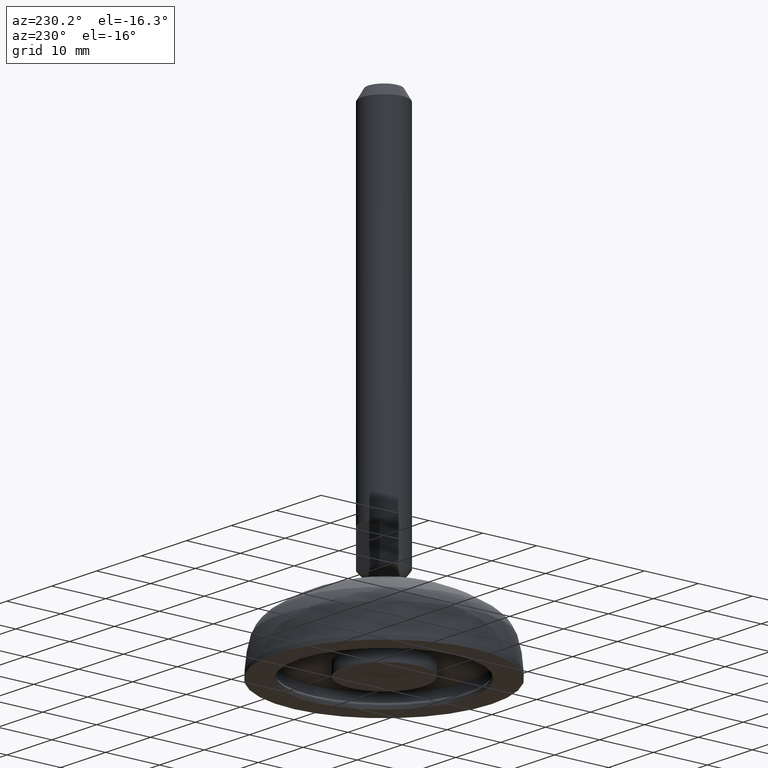
[diagram: clean part render]
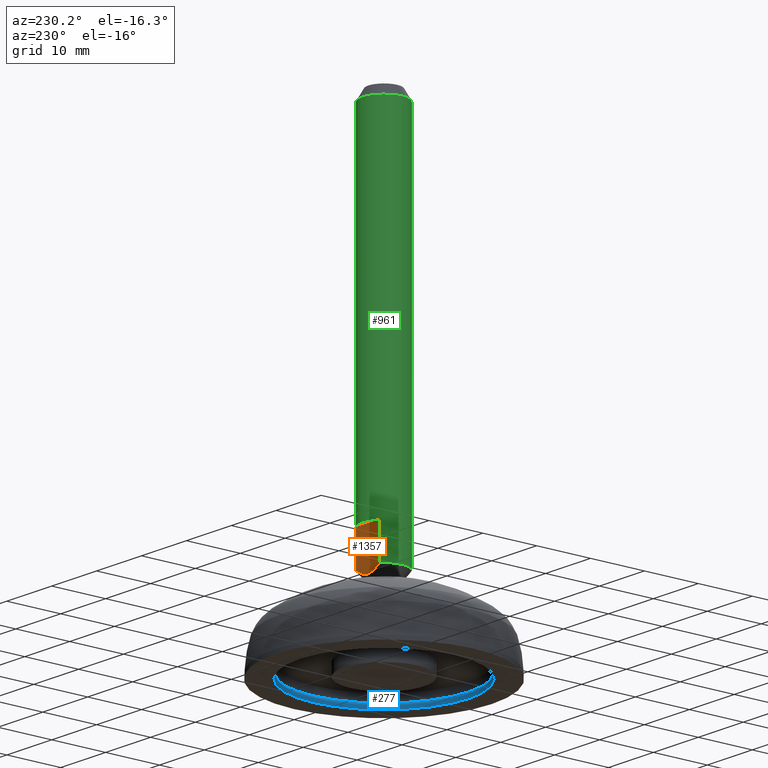
[diagram: same view with three faces highlighted in distinct colors, each labeled with its STEP entity id]
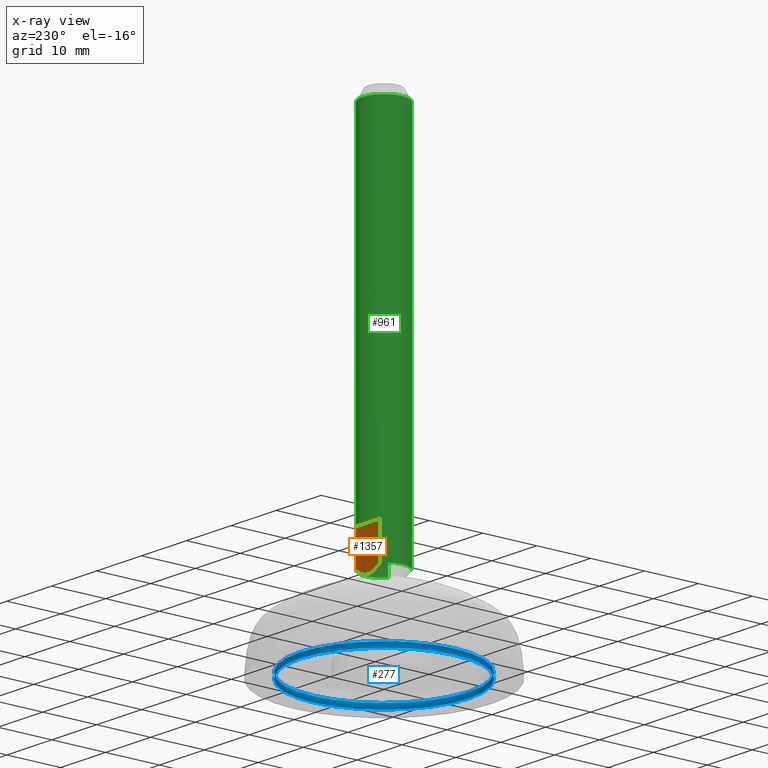
[diagram: x-ray of the same camera — body ghosted, the three highlighted faces saturated]
A machine part, auxiliary view with three faces highlighted in distinct colors.
The next image is the same camera in x-ray (body ghosted, the three faces saturated) — at least one of them is partly hidden behind the body in this view.
Their STEP definitions:

[orange] entity #1357 — the highlighted planar face has unit normal (0, 1, 0).
#893=CARTESIAN_POINT('',(2.645810161909338,2.999996833023360,16.102853341086671));
#894=VERTEX_POINT('',#893);
#902=CARTESIAN_POINT('',(2.645807595618447,2.999996833023360,22.602834181436315));
#903=VERTEX_POINT('',#902);
#904=CARTESIAN_POINT('',(2.645808570098528,2.999996833023360,22.602834181436545));
#905=CARTESIAN_POINT('',(2.645809034377124,2.999996833023360,20.707006293106208));
#906=CARTESIAN_POINT('',(2.645809498655344,2.999996833023360,18.811178404775880));
#907=CARTESIAN_POINT('',(2.645809962933240,2.999996833023360,16.915350516445535));
#908=CARTESIAN_POINT('',(2.645810029258613,2.999996833023360,16.644518124659250));
#909=CARTESIAN_POINT('',(2.645810095583978,2.999996833023360,16.373685732872964));
#910=CARTESIAN_POINT('',(2.645810161909338,2.999996833023360,16.102853341086671));
#911=B_SPLINE_CURVE_WITH_KNOTS('',3,(#904,#905,#906,#907,#908,#909,#910),.UNSPECIFIED.,.F.,.U.,(4,3,4),(0.007187546479511,0.012875030144503,0.013687527319862),.UNSPECIFIED.);
#912=EDGE_CURVE('',#903,#894,#911,.T.);
#914=CARTESIAN_POINT('',(-2.645758212562657,2.999996833023360,22.602834181436315));
#915=VERTEX_POINT('',#914);
#923=CARTESIAN_POINT('',(-2.645763705207422,2.999996833023360,16.102854928903412));
#924=VERTEX_POINT('',#923);
#925=CARTESIAN_POINT('',(-2.645763705205931,2.999996833023360,16.102854928903412));
#926=CARTESIAN_POINT('',(-2.645763476346413,2.999996833023360,16.373686720555785));
#927=CARTESIAN_POINT('',(-2.645763247486892,2.999996833023360,16.644518512208158));
#928=CARTESIAN_POINT('',(-2.645763018627362,2.999996833023360,16.915350303860535));
#929=CARTESIAN_POINT('',(-2.645761416606073,2.999996833023360,18.811178263052447));
#930=CARTESIAN_POINT('',(-2.645759814584460,2.999996833023360,20.707006222244381));
#931=CARTESIAN_POINT('',(-2.645758212562481,2.999996833023360,22.602834181436315));
#932=B_SPLINE_CURVE_WITH_KNOTS('',3,(#925,#926,#927,#928,#929,#930,#931),.UNSPECIFIED.,.F.,.U.,(4,3,4),(0.007187548279914,0.008000043654872,0.013687527532449),.UNSPECIFIED.);
#933=EDGE_CURVE('',#924,#915,#932,.T.);
#988=CARTESIAN_POINT('',(0.000022793426677,2.999996833023357,15.010998125120210));
#989=VERTEX_POINT('',#988);
#990=CARTESIAN_POINT('',(2.645810161909338,2.999996833023360,16.102853341086671));
#991=CARTESIAN_POINT('',(2.449052377870414,2.999996833023360,15.960758241064360));
#992=CARTESIAN_POINT('',(2.248140700327917,2.999996833023360,15.824416305889651));
#993=CARTESIAN_POINT('',(1.836331898045976,2.999996833023359,15.571400184448759));
#994=CARTESIAN_POINT('',(1.625177884263521,2.999996833023360,15.454401319863024));
#995=CARTESIAN_POINT('',(1.295793950921735,2.999996833023360,15.301822624191777));
#996=CARTESIAN_POINT('',(1.183864976390488,2.999996833023360,15.254829203914500));
#997=CARTESIAN_POINT('',(0.954527172513798,2.999996833023359,15.170768622262560));
#998=CARTESIAN_POINT('',(0.838098784630705,2.999996833023359,15.134124820766697));
#999=CARTESIAN_POINT('',(0.603332968674916,2.999996833023359,15.074251275510452));
#1000=CARTESIAN_POINT('',(0.484685164112518,2.999996833023360,15.050913370169180));
#1001=CARTESIAN_POINT('',(0.244506480525375,2.999996833023360,15.019278335142340));
#1002=CARTESIAN_POINT('',(0.122336153885125,2.999996833023361,15.010998083641898));
#1003=CARTESIAN_POINT('',(0.000022793426677,2.999996833023360,15.010998125120210));
#1004=B_SPLINE_CURVE_WITH_KNOTS('',3,(#990,#991,#992,#993,#994,#995,#996,#997,#998,#999,#1000,#1001,#1002,#1003),.UNSPECIFIED.,.F.,.U.,(4,2,2,2,2,2,4),(0.0,0.249999999999999,0.500000000000000,0.625000000000000,0.750000000000000,0.875000000000000,1.0),.UNSPECIFIED.);
#1005=EDGE_CURVE('',#894,#989,#1004,.T.);
#1063=CARTESIAN_POINT('',(0.000022793426677,2.999996833023360,15.010998125120210));
#1064=CARTESIAN_POINT('',(-0.244510717188066,2.999996833023360,15.010998208045232));
#1065=CARTESIAN_POINT('',(-0.483895231750382,2.999996833023360,15.043928746509447));
#1066=CARTESIAN_POINT('',(-0.836657815569132,2.999996833023360,15.133707006609530));
#1067=CARTESIAN_POINT('',(-0.953749623776380,2.999996833023360,15.170540902545810));
#1068=CARTESIAN_POINT('',(-1.182267379808181,2.999996833023360,15.254221689947581));
#1069=CARTESIAN_POINT('',(-1.293983340954007,2.999996833023360,15.301061079883130));
#1070=CARTESIAN_POINT('',(-1.623134358296861,2.999996833023360,15.453368196225787));
#1071=CARTESIAN_POINT('',(-1.834663489810545,2.999996833023360,15.570446091884481));
#1072=CARTESIAN_POINT('',(-2.247765562309429,2.999996833023360,15.824174272511641));
#1073=CARTESIAN_POINT('',(-2.449404107509873,2.999996833023360,15.961047212932900));
#1074=CARTESIAN_POINT('',(-2.645763705207080,2.999996833023360,16.102854928903813));
#1075=B_SPLINE_CURVE_WITH_KNOTS('',3,(#1063,#1064,#1065,#1066,#1067,#1068,#1069,#1070,#1071,#1072,#1073,#1074),.UNSPECIFIED.,.F.,.U.,(4,2,2,2,2,4),(0.0,0.250000000000000,0.375000000000000,0.500000000000000,0.750000000000000,1.0),.UNSPECIFIED.);
#1076=EDGE_CURVE('',#989,#924,#1075,.T.);
#1336=CARTESIAN_POINT('',(-2.645758212562657,2.999996833023360,22.602834181436315));
#1337=DIRECTION('',(1.0,0.0,0.0));
#1338=VECTOR('',#1337,5.291565808181103);
#1339=LINE('',#1336,#1338);
#1340=EDGE_CURVE('',#915,#903,#1339,.T.);
#1345=CARTESIAN_POINT('',(-2.910342398563261,2.999996833023360,14.631406322304393));
#1346=DIRECTION('',(0.0,1.0,0.0));
#1347=DIRECTION('',(0.0,0.0,1.0));
#1348=AXIS2_PLACEMENT_3D('',#1345,#1346,#1347);
#1349=PLANE('',#1348);
#1350=ORIENTED_EDGE('',*,*,#912,.T.);
#1351=ORIENTED_EDGE('',*,*,#1005,.T.);
#1352=ORIENTED_EDGE('',*,*,#1076,.T.);
#1353=ORIENTED_EDGE('',*,*,#933,.T.);
#1354=ORIENTED_EDGE('',*,*,#1340,.T.);
#1355=EDGE_LOOP('',(#1350,#1351,#1352,#1353,#1354));
#1356=FACE_OUTER_BOUND('',#1355,.T.);
#1357=ADVANCED_FACE('',(#1356),#1349,.T.);

[blue] entity #277 — the highlighted face is a freeform B-spline surface patch.
#164=CARTESIAN_POINT('',(-15.700001313207512,5.857621E-016,0.999988580769128));
#165=VERTEX_POINT('',#164);
#166=CARTESIAN_POINT('',(15.700001313207508,5.857621E-016,0.999988580769131));
#167=VERTEX_POINT('',#166);
#168=CARTESIAN_POINT('',(0.0,5.857621E-016,0.999988580769128));
#169=DIRECTION('',(0.0,0.0,1.0));
#170=DIRECTION('',(1.0,0.0,0.0));
#171=AXIS2_PLACEMENT_3D('',#168,#169,#170);
#172=CIRCLE('',#171,15.700001313207512);
#173=EDGE_CURVE('',#165,#167,#172,.T.);
#175=CARTESIAN_POINT('',(0.0,5.857621E-016,0.999988580769128));
#176=DIRECTION('',(0.0,0.0,1.0));
#177=DIRECTION('',(1.0,0.0,0.0));
#178=AXIS2_PLACEMENT_3D('',#175,#176,#177);
#179=CIRCLE('',#178,15.700001313207512);
#180=EDGE_CURVE('',#167,#165,#179,.T.);
#194=CARTESIAN_POINT('',(15.700001345624077,0.000000888126178,0.999988598058511));
#195=CARTESIAN_POINT('',(15.400030556338221,0.000000871157268,0.839999369264960));
#196=CARTESIAN_POINT('',(15.400030556338226,0.000000871157268,0.500030212201068));
#197=CARTESIAN_POINT('',(15.400030556338221,0.000000871157268,0.160000887957739));
#198=CARTESIAN_POINT('',(15.700079416881787,0.000000888130594,0.000030194917159));
#199=CARTESIAN_POINT('',(15.700002233750304,-15.700001345624102,0.999988598058511));
#200=CARTESIAN_POINT('',(15.400031427495540,-15.400030556338251,0.839999369264961));
#201=CARTESIAN_POINT('',(15.400031427495540,-15.400030556338248,0.500030212201068));
#202=CARTESIAN_POINT('',(15.400031427495540,-15.400030556338249,0.160000887957739));
#203=CARTESIAN_POINT('',(15.700080305012433,-15.700079416881813,0.000030194917159));
#204=CARTESIAN_POINT('',(0.0,-15.700001345624100,0.999988598058511));
#205=CARTESIAN_POINT('',(0.0,-15.400030556338248,0.839999369264960));
#206=CARTESIAN_POINT('',(0.0,-15.400030556338248,0.500030212201068));
#207=CARTESIAN_POINT('',(0.0,-15.400030556338251,0.160000887957739));
#208=CARTESIAN_POINT('',(0.0,-15.700079416881813,0.000030194917159));
#209=CARTESIAN_POINT('',(-15.700001345624104,-15.700001345624104,0.999988598058511));
#210=CARTESIAN_POINT('',(-15.400030556338249,-15.400030556338249,0.839999369264961));
#211=CARTESIAN_POINT('',(-15.400030556338248,-15.400030556338248,0.500030212201068));
#212=CARTESIAN_POINT('',(-15.400030556338249,-15.400030556338249,0.160000887957739));
#213=CARTESIAN_POINT('',(-15.700079416881815,-15.700079416881815,0.000030194917159));
#214=CARTESIAN_POINT('',(-15.700001345624100,5.857621E-016,0.999988598058511));
#215=CARTESIAN_POINT('',(-15.400030556338248,5.857621E-016,0.839999369264960));
#216=CARTESIAN_POINT('',(-15.400030556338248,5.857621E-016,0.500030212201068));
#217=CARTESIAN_POINT('',(-15.400030556338251,5.857621E-016,0.160000887957739));
#218=CARTESIAN_POINT('',(-15.700079416881813,5.857621E-016,0.000030194917159));
#219=CARTESIAN_POINT('',(-15.700001345624104,15.700001345624104,0.999988598058511));
#220=CARTESIAN_POINT('',(-15.400030556338249,15.400030556338249,0.839999369264961));
#221=CARTESIAN_POINT('',(-15.400030556338248,15.400030556338248,0.500030212201068));
#222=CARTESIAN_POINT('',(-15.400030556338249,15.400030556338249,0.160000887957739));
#223=CARTESIAN_POINT('',(-15.700079416881815,15.700079416881815,0.000030194917159));
#224=CARTESIAN_POINT('',(0.0,15.700001345624100,0.999988598058511));
#225=CARTESIAN_POINT('',(0.0,15.400030556338248,0.839999369264960));
#226=CARTESIAN_POINT('',(0.0,15.400030556338248,0.500030212201068));
#227=CARTESIAN_POINT('',(0.0,15.400030556338251,0.160000887957739));
#228=CARTESIAN_POINT('',(0.0,15.700079416881813,0.000030194917159));
#229=CARTESIAN_POINT('',(15.700002233750304,15.700001345624102,0.999988598058511));
#230=CARTESIAN_POINT('',(15.400031427495540,15.400030556338251,0.839999369264961));
#231=CARTESIAN_POINT('',(15.400031427495540,15.400030556338248,0.500030212201068));
#232=CARTESIAN_POINT('',(15.400031427495540,15.400030556338249,0.160000887957739));
#233=CARTESIAN_POINT('',(15.700080305012433,15.700079416881813,0.000030194917159));
#234=CARTESIAN_POINT('',(15.700001345624075,-0.000000888126177,0.999988598058511));
#235=CARTESIAN_POINT('',(15.400030556338224,-0.000000871157267,0.839999369264960));
#236=CARTESIAN_POINT('',(15.400030556338223,-0.000000871157267,0.500030212201068));
#237=CARTESIAN_POINT('',(15.400030556338223,-0.000000871157267,0.160000887957739));
#238=CARTESIAN_POINT('',(15.700079416881787,-0.000000888130593,0.000030194917159));
#246=(BOUNDED_SURFACE()B_SPLINE_SURFACE(2,2,((#194,#199,#204,#209,#214,#219,#224,#229,#234),(#195,#200,#205,#210,#215,#220,#225,#230,#235),(#196,#201,#206,#211,#216,#221,#226,#231,#236),(#197,#202,#207,#212,#217,#222,#227,#232,#237),(#198,#203,#208,#213,#218,#223,#228,#233,#238)),.UNSPECIFIED.,.F.,.T.,.U.)B_SPLINE_SURFACE_WITH_KNOTS((3,2,3),(3,2,2,2,3),(0.330096234762487,0.500000000000000,0.669927848245338),(-1.000000E-008,0.250000000000000,0.500000000000000,0.750000000000000,1.000000010000000),.UNSPECIFIED.)GEOMETRIC_REPRESENTATION_ITEM()RATIONAL_B_SPLINE_SURFACE(((0.872451801268990,0.616916560259058,0.872451780826172,0.616916570480466,0.872451780826172,0.616916570480466,0.872451780826172,0.616916560259058,0.872451801268990),(0.800945376011557,0.566353884083625,0.800945357244239,0.566353893467283,0.800945357244239,0.566353893467283,0.800945357244239,0.566353884083625,0.800945376011557),(1.000000023431458,0.707106769470819,1.0,0.707106781186548,1.0,0.707106781186548,1.0,0.707106769470819,1.000000023431458),(0.800917161012172,0.566333933067027,0.800917142245516,0.566333942450355,0.800917142245516,0.566333942450355,0.800917142245516,0.566333933067027,0.800917161012172),(0.872472078060343,0.616930898115150,0.872472057617050,0.616930908336796,0.872472057617050,0.616930908336796,0.872472057617050,0.616930898115150,0.872472078060343)))REPRESENTATION_ITEM('')SURFACE());
#247=CARTESIAN_POINT('',(15.700079384463271,5.857621E-016,0.000030212201068));
#248=VERTEX_POINT('',#247);
#249=CARTESIAN_POINT('',(15.966653831263219,5.857621E-016,0.500030212201068));
#250=DIRECTION('',(0.0,1.0,0.0));
#251=DIRECTION('',(1.0,0.0,0.0));
#252=AXIS2_PLACEMENT_3D('',#249,#250,#251);
#253=CIRCLE('',#252,0.566623274924971);
#254=EDGE_CURVE('',#248,#167,#253,.T.);
#255=ORIENTED_EDGE('',*,*,#254,.F.);
#256=CARTESIAN_POINT('',(-15.700079384463271,5.857621E-016,0.000030212201068));
#257=VERTEX_POINT('',#256);
#258=CARTESIAN_POINT('',(0.0,5.857621E-016,0.000030212201068));
#259=DIRECTION('',(0.0,0.0,1.0));
#260=DIRECTION('',(1.0,0.0,0.0));
#261=AXIS2_PLACEMENT_3D('',#258,#259,#260);
#262=CIRCLE('',#261,15.700079384463271);
#263=EDGE_CURVE('',#257,#248,#262,.T.);
#264=ORIENTED_EDGE('',*,*,#263,.F.);
#265=CARTESIAN_POINT('',(0.0,5.857621E-016,0.000030212201068));
#266=DIRECTION('',(0.0,0.0,1.0));
#267=DIRECTION('',(1.0,0.0,0.0));
#268=AXIS2_PLACEMENT_3D('',#265,#266,#267);
#269=CIRCLE('',#268,15.700079384463271);
#270=EDGE_CURVE('',#248,#257,#269,.T.);
#271=ORIENTED_EDGE('',*,*,#270,.F.);
#272=ORIENTED_EDGE('',*,*,#254,.T.);
#273=ORIENTED_EDGE('',*,*,#180,.T.);
#274=ORIENTED_EDGE('',*,*,#173,.T.);
#275=EDGE_LOOP('',(#255,#264,#271,#272,#273,#274));
#276=FACE_OUTER_BOUND('',#275,.T.);
#277=ADVANCED_FACE('',(#276),#246,.T.);

[green] entity #961 — the highlighted cylindrical surface (bore or boss wall) has radius 4 mm, axis along (-0, 0, -1).
#836=CARTESIAN_POINT('',(0.000044111296350,-0.000003166976640,85.697582221026266));
#837=DIRECTION('',(-0.000000300065037,0.0,-0.999999999999955));
#838=DIRECTION('',(-0.999999999999955,0.0,0.000000300065037));
#839=AXIS2_PLACEMENT_3D('',#836,#837,#838);
#840=CYLINDRICAL_SURFACE('',#839,3.999998476067683);
#841=CARTESIAN_POINT('',(-3.999991971773162,-0.000003166976640,16.102855335259523));
#842=VERTEX_POINT('',#841);
#843=CARTESIAN_POINT('',(-3.999954364771156,-0.000003166976640,85.697583411285962));
#844=VERTEX_POINT('',#843);
#845=CARTESIAN_POINT('',(-3.999975247715812,-0.000003166976640,16.102855335254489));
#846=DIRECTION('',(0.000000300065037,0.0,0.999999999999955));
#847=VECTOR('',#846,69.594728076034599);
#848=LINE('',#845,#847);
#849=EDGE_CURVE('',#842,#844,#848,.T.);
#850=ORIENTED_EDGE('',*,*,#849,.F.);
#851=CARTESIAN_POINT('',(-2.645763705205930,-3.000003166976640,16.102854928902978));
#852=VERTEX_POINT('',#851);
#853=CARTESIAN_POINT('',(0.000023228351704,-0.000003166976640,16.102854134994825));
#854=DIRECTION('',(-0.000000300065037,0.0,-0.999999999999955));
#855=DIRECTION('',(-0.999999999999955,0.0,0.000000300065037));
#856=AXIS2_PLACEMENT_3D('',#853,#854,#855);
#857=CIRCLE('',#856,4.000023562153722);
#858=EDGE_CURVE('',#852,#842,#857,.T.);
#859=ORIENTED_EDGE('',*,*,#858,.F.);
#860=CARTESIAN_POINT('',(-2.645758212562657,-3.000003166976640,22.602834181436315));
#861=VERTEX_POINT('',#860);
#862=CARTESIAN_POINT('',(-2.645763705205931,-3.000003166976640,16.102854928902978));
#863=CARTESIAN_POINT('',(-2.645763476346413,-3.000003166976640,16.373686720555501));
#864=CARTESIAN_POINT('',(-2.645763247486892,-3.000003166976640,16.644518512208009));
#865=CARTESIAN_POINT('',(-2.645763018627362,-3.000003166976640,16.915350303860535));
#866=CARTESIAN_POINT('',(-2.645761416606073,-3.000003166976640,18.811178263052447));
#867=CARTESIAN_POINT('',(-2.645759814584460,-3.000003166976640,20.707006222244381));
#868=CARTESIAN_POINT('',(-2.645758212562481,-3.000003166976640,22.602834181436315));
#869=B_SPLINE_CURVE_WITH_KNOTS('',3,(#862,#863,#864,#865,#866,#867,#868),.UNSPECIFIED.,.F.,.U.,(4,3,4),(0.007187548279914,0.008000043654872,0.013687527532449),.UNSPECIFIED.);
#870=EDGE_CURVE('',#852,#861,#869,.T.);
#871=ORIENTED_EDGE('',*,*,#870,.T.);
#872=CARTESIAN_POINT('',(2.645807595618447,-3.000003166976640,22.602834181436315));
#873=VERTEX_POINT('',#872);
#874=CARTESIAN_POINT('',(0.000025178768036,-0.000003166976624,22.602834181436300));
#875=DIRECTION('',(0.0,0.0,1.0));
#876=DIRECTION('',(0.0,-1.0,0.0));
#877=AXIS2_PLACEMENT_3D('',#874,#875,#876);
#878=CIRCLE('',#877,4.000021219173773);
#879=EDGE_CURVE('',#861,#873,#878,.T.);
#880=ORIENTED_EDGE('',*,*,#879,.T.);
#881=CARTESIAN_POINT('',(2.645810161909338,-3.000003166976640,16.102853341086671));
#882=VERTEX_POINT('',#881);
#883=CARTESIAN_POINT('',(2.645808570098528,-3.000003166976640,22.602834181436545));
#884=CARTESIAN_POINT('',(2.645809034377124,-3.000003166976640,20.707006293106225));
#885=CARTESIAN_POINT('',(2.645809498655344,-3.000003166976640,18.811178404775880));
#886=CARTESIAN_POINT('',(2.645809962933240,-3.000003166976640,16.915350516445550));
#887=CARTESIAN_POINT('',(2.645810029258613,-3.000003166976640,16.644518124659264));
#888=CARTESIAN_POINT('',(2.645810095583978,-3.000003166976640,16.373685732872964));
#889=CARTESIAN_POINT('',(2.645810161909338,-3.000003166976640,16.102853341086671));
#890=B_SPLINE_CURVE_WITH_KNOTS('',3,(#883,#884,#885,#886,#887,#888,#889),.UNSPECIFIED.,.F.,.U.,(4,3,4),(0.007187546479511,0.012875030144503,0.013687527319862),.UNSPECIFIED.);
#891=EDGE_CURVE('',#873,#882,#890,.T.);
#892=ORIENTED_EDGE('',*,*,#891,.T.);
#893=CARTESIAN_POINT('',(2.645810161909338,2.999996833023360,16.102853341086671));
#894=VERTEX_POINT('',#893);
#895=CARTESIAN_POINT('',(0.000023228351704,-0.000003166976640,16.102854134994825));
#896=DIRECTION('',(-0.000000300065037,0.0,-0.999999999999955));
#897=DIRECTION('',(-0.999999999999955,0.0,0.000000300065037));
#898=AXIS2_PLACEMENT_3D('',#895,#896,#897);
#899=CIRCLE('',#898,4.000023562153722);
#900=EDGE_CURVE('',#894,#882,#899,.T.);
#901=ORIENTED_EDGE('',*,*,#900,.F.);
#902=CARTESIAN_POINT('',(2.645807595618447,2.999996833023360,22.602834181436315));
#903=VERTEX_POINT('',#902);
#904=CARTESIAN_POINT('',(2.645808570098528,2.999996833023360,22.602834181436545));
#905=CARTESIAN_POINT('',(2.645809034377124,2.999996833023360,20.707006293106208));
#906=CARTESIAN_POINT('',(2.645809498655344,2.999996833023360,18.811178404775880));
#907=CARTESIAN_POINT('',(2.645809962933240,2.999996833023360,16.915350516445535));
#908=CARTESIAN_POINT('',(2.645810029258613,2.999996833023360,16.644518124659250));
#909=CARTESIAN_POINT('',(2.645810095583978,2.999996833023360,16.373685732872964));
#910=CARTESIAN_POINT('',(2.645810161909338,2.999996833023360,16.102853341086671));
#911=B_SPLINE_CURVE_WITH_KNOTS('',3,(#904,#905,#906,#907,#908,#909,#910),.UNSPECIFIED.,.F.,.U.,(4,3,4),(0.007187546479511,0.012875030144503,0.013687527319862),.UNSPECIFIED.);
#912=EDGE_CURVE('',#903,#894,#911,.T.);
#913=ORIENTED_EDGE('',*,*,#912,.F.);
#914=CARTESIAN_POINT('',(-2.645758212562657,2.999996833023360,22.602834181436315));
#915=VERTEX_POINT('',#914);
#916=CARTESIAN_POINT('',(0.000025178768036,-0.000003166976624,22.602834181436315));
#917=DIRECTION('',(0.0,0.0,-1.0));
#918=DIRECTION('',(0.0,1.0,0.0));
#919=AXIS2_PLACEMENT_3D('',#916,#917,#918);
#920=CIRCLE('',#919,4.000021219173773);
#921=EDGE_CURVE('',#915,#903,#920,.T.);
#922=ORIENTED_EDGE('',*,*,#921,.F.);
#923=CARTESIAN_POINT('',(-2.645763705207422,2.999996833023360,16.102854928903412));
#924=VERTEX_POINT('',#923);
#925=CARTESIAN_POINT('',(-2.645763705205931,2.999996833023360,16.102854928903412));
#926=CARTESIAN_POINT('',(-2.645763476346413,2.999996833023360,16.373686720555785));
#927=CARTESIAN_POINT('',(-2.645763247486892,2.999996833023360,16.644518512208158));
#928=CARTESIAN_POINT('',(-2.645763018627362,2.999996833023360,16.915350303860535));
#929=CARTESIAN_POINT('',(-2.645761416606073,2.999996833023360,18.811178263052447));
#930=CARTESIAN_POINT('',(-2.645759814584460,2.999996833023360,20.707006222244381));
#931=CARTESIAN_POINT('',(-2.645758212562481,2.999996833023360,22.602834181436315));
#932=B_SPLINE_CURVE_WITH_KNOTS('',3,(#925,#926,#927,#928,#929,#930,#931),.UNSPECIFIED.,.F.,.U.,(4,3,4),(0.007187548279914,0.008000043654872,0.013687527532449),.UNSPECIFIED.);
#933=EDGE_CURVE('',#924,#915,#932,.T.);
#934=ORIENTED_EDGE('',*,*,#933,.F.);
#935=CARTESIAN_POINT('',(0.000023228351704,-0.000003166976640,16.102854134994825));
#936=DIRECTION('',(-0.000000300065037,0.0,-0.999999999999955));
#937=DIRECTION('',(-0.999999999999955,0.0,0.000000300065037));
#938=AXIS2_PLACEMENT_3D('',#935,#936,#937);
#939=CIRCLE('',#938,4.000023562153722);
#940=EDGE_CURVE('',#842,#924,#939,.T.);
#941=ORIENTED_EDGE('',*,*,#940,.F.);
#942=ORIENTED_EDGE('',*,*,#849,.T.);
#943=CARTESIAN_POINT('',(4.000042587363851,-0.000003166976640,85.697581010766584));
#944=VERTEX_POINT('',#943);
#945=CARTESIAN_POINT('',(0.000044111296347,-0.000003166976640,85.697582211026287));
#946=DIRECTION('',(-0.000000300065037,0.0,-0.999999999999955));
#947=DIRECTION('',(-0.999999999999955,0.0,0.000000300065037));
#948=AXIS2_PLACEMENT_3D('',#945,#946,#947);
#949=CIRCLE('',#948,3.999998476067683);
#950=EDGE_CURVE('',#844,#944,#949,.T.);
#951=ORIENTED_EDGE('',*,*,#950,.T.);
#952=CARTESIAN_POINT('',(0.000044111296347,-0.000003166976640,85.697582211026287));
#953=DIRECTION('',(-0.000000300065037,0.0,-0.999999999999955));
#954=DIRECTION('',(-0.999999999999955,0.0,0.000000300065037));
#955=AXIS2_PLACEMENT_3D('',#952,#953,#954);
#956=CIRCLE('',#955,3.999998476067683);
#957=EDGE_CURVE('',#944,#844,#956,.T.);
#958=ORIENTED_EDGE('',*,*,#957,.T.);
#959=EDGE_LOOP('',(#850,#859,#871,#880,#892,#901,#913,#922,#934,#941,#942,#951,#958));
#960=FACE_OUTER_BOUND('',#959,.T.);
#961=ADVANCED_FACE('',(#960),#840,.T.);